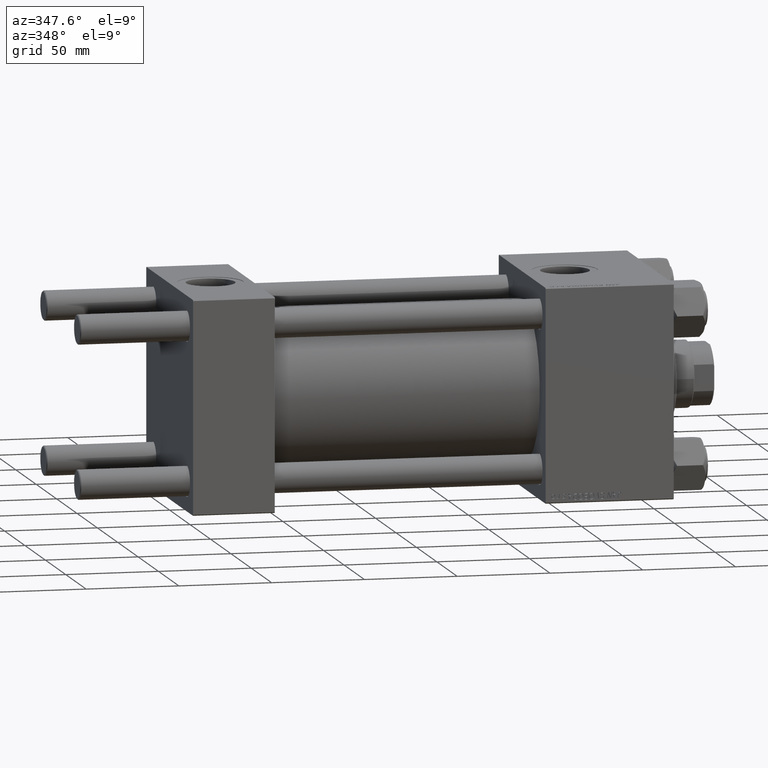
[diagram: clean part render]
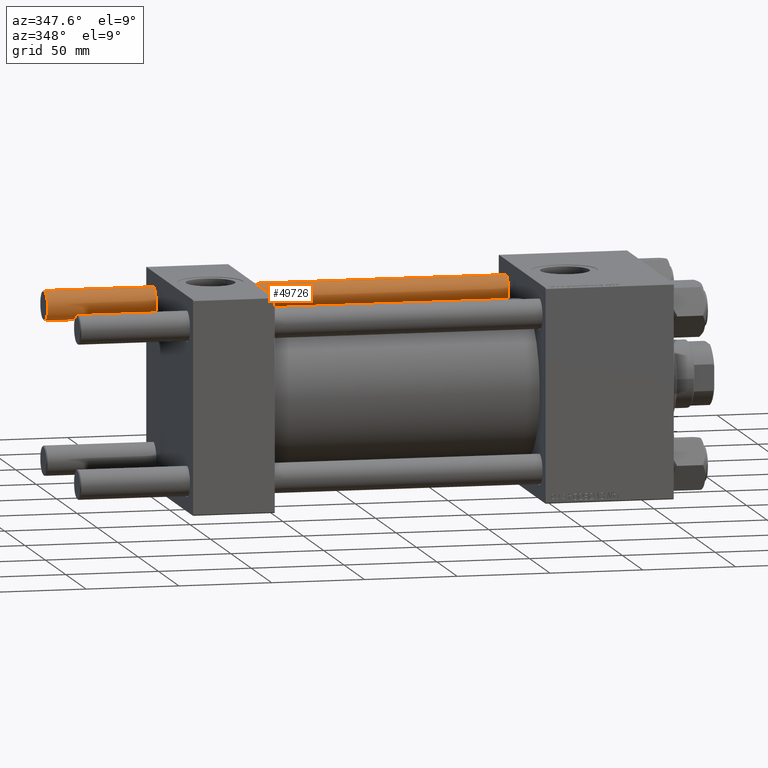
[diagram: same view with one face highlighted and labeled with its STEP entity id]
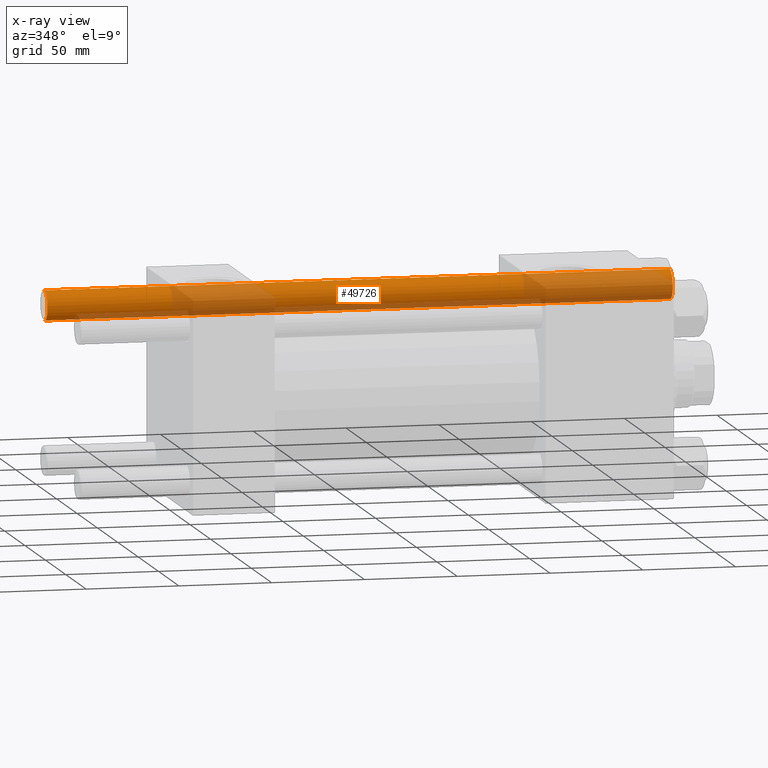
[diagram: x-ray of the same camera — body ghosted, the highlighted face saturated]
A machine part, auxiliary view. The second image highlights one B-rep face of the part: STEP entity #49726.
The next image is the same camera in x-ray: the body ghosted, the highlighted face saturated — about 48% of this face is hidden behind the body in this view.
In plain terms, the highlighted cylindrical surface (edge-blend (fillet) strip) has radius 8 mm, axis along (-1, -0, -0).
Its self-contained STEP definition (entity closure, byte-faithful):
#705 = CARTESIAN_POINT ( 'NONE',  ( 0.000000000000000000, 0.000000000000000000, 338.0000000000000000 ) ) ;
#1034 = VERTEX_POINT ( 'NONE', #5636 ) ;
#1386 = CARTESIAN_POINT ( 'NONE',  ( 8.000000000000000000, 9.797174393178825657E-16, 0.4999999999999449329 ) ) ;
#2202 = VERTEX_POINT ( 'NONE', #44041 ) ;
#5636 = CARTESIAN_POINT ( 'NONE',  ( -8.000000000000000000, 0.000000000000000000, 0.4999999999999449329 ) ) ;
#7631 = VECTOR ( 'NONE', #33930, 1000.000000000000000 ) ;
#7775 = CARTESIAN_POINT ( 'NONE',  ( 0.000000000000000000, 0.000000000000000000, 337.5000000000000000 ) ) ;
#8094 = EDGE_CURVE ( 'NONE', #1034, #19220, #11392, .T. ) ;
#8131 = AXIS2_PLACEMENT_3D ( 'NONE', #705, #48047, #20318 ) ;
#10908 = ORIENTED_EDGE ( 'NONE', *, *, #26794, .T. ) ;
#11392 = CIRCLE ( 'NONE', #39026, 8.000000000000000000 ) ;
#11761 = DIRECTION ( 'NONE',  ( -0.000000000000000000, -0.000000000000000000, 1.000000000000000000 ) ) ;
#15771 = EDGE_CURVE ( 'NONE', #2202, #29413, #44805, .T. ) ;
#16854 = CARTESIAN_POINT ( 'NONE',  ( 8.000000000000000000, 9.797174393178825657E-16, 338.0000000000000000 ) ) ;
#18753 = ORIENTED_EDGE ( 'NONE', *, *, #44894, .F. ) ;
#19220 = VERTEX_POINT ( 'NONE', #1386 ) ;
#20318 = DIRECTION ( 'NONE',  ( -1.000000000000000000, 0.000000000000000000, 0.000000000000000000 ) ) ;
#22210 = CARTESIAN_POINT ( 'NONE',  ( -8.000000000000000000, 0.000000000000000000, 338.0000000000000000 ) ) ;
#23312 = DIRECTION ( 'NONE',  ( 1.000000000000000000, 0.000000000000000000, 0.000000000000000000 ) ) ;
#24333 = ORIENTED_EDGE ( 'NONE', *, *, #8094, .T. ) ;
#26474 = EDGE_LOOP ( 'NONE', ( #18753, #33295, #10908, #24333 ) ) ;
#26794 = EDGE_CURVE ( 'NONE', #29413, #1034, #45357, .T. ) ;
#26891 = DIRECTION ( 'NONE',  ( 0.000000000000000000, 0.000000000000000000, -1.000000000000000000 ) ) ;
#27293 = DIRECTION ( 'NONE',  ( 1.000000000000000000, 0.000000000000000000, 0.000000000000000000 ) ) ;
#28065 = LINE ( 'NONE', #16854, #38091 ) ;
#29413 = VERTEX_POINT ( 'NONE', #48078 ) ;
#32403 = DIRECTION ( 'NONE',  ( -0.000000000000000000, -0.000000000000000000, -1.000000000000000000 ) ) ;
#33295 = ORIENTED_EDGE ( 'NONE', *, *, #15771, .T. ) ;
#33930 = DIRECTION ( 'NONE',  ( -0.000000000000000000, -0.000000000000000000, -1.000000000000000000 ) ) ;
#38091 = VECTOR ( 'NONE', #32403, 1000.000000000000000 ) ;
#39026 = AXIS2_PLACEMENT_3D ( 'NONE', #46639, #11761, #27293 ) ;
#43211 = AXIS2_PLACEMENT_3D ( 'NONE', #7775, #26891, #23312 ) ;
#43717 = CYLINDRICAL_SURFACE ( 'NONE', #8131, 8.000000000000000000 ) ;
#44041 = CARTESIAN_POINT ( 'NONE',  ( 8.000000000000000000, 9.797174393178825657E-16, 337.5000000000000000 ) ) ;
#44465 = FACE_OUTER_BOUND ( 'NONE', #26474, .T. ) ;
#44805 = CIRCLE ( 'NONE', #43211, 8.000000000000000000 ) ;
#44894 = EDGE_CURVE ( 'NONE', #2202, #19220, #28065, .T. ) ;
#45357 = LINE ( 'NONE', #22210, #7631 ) ;
#46639 = CARTESIAN_POINT ( 'NONE',  ( 0.000000000000000000, 0.000000000000000000, 0.4999999999999449329 ) ) ;
#48047 = DIRECTION ( 'NONE',  ( -0.000000000000000000, -0.000000000000000000, -1.000000000000000000 ) ) ;
#48078 = CARTESIAN_POINT ( 'NONE',  ( -8.000000000000000000, 0.000000000000000000, 337.5000000000000000 ) ) ;
#49726 = ADVANCED_FACE ( 'NONE', ( #44465 ), #43717, .T. ) ;